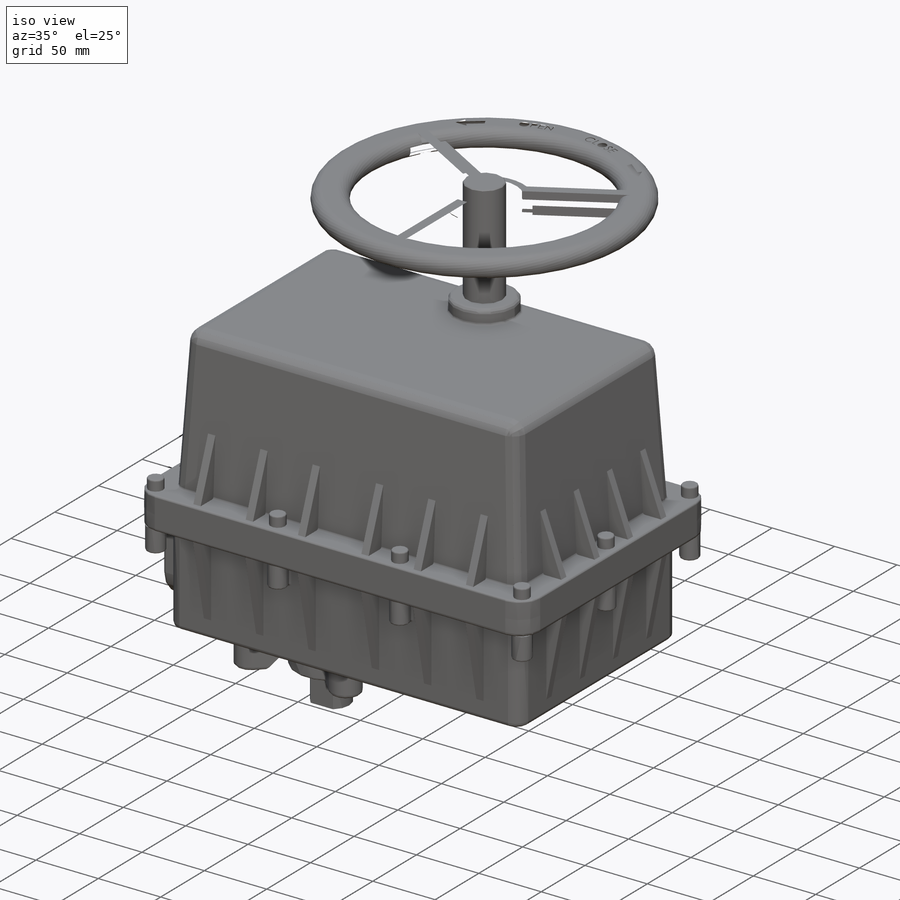
[diagram: iso view]
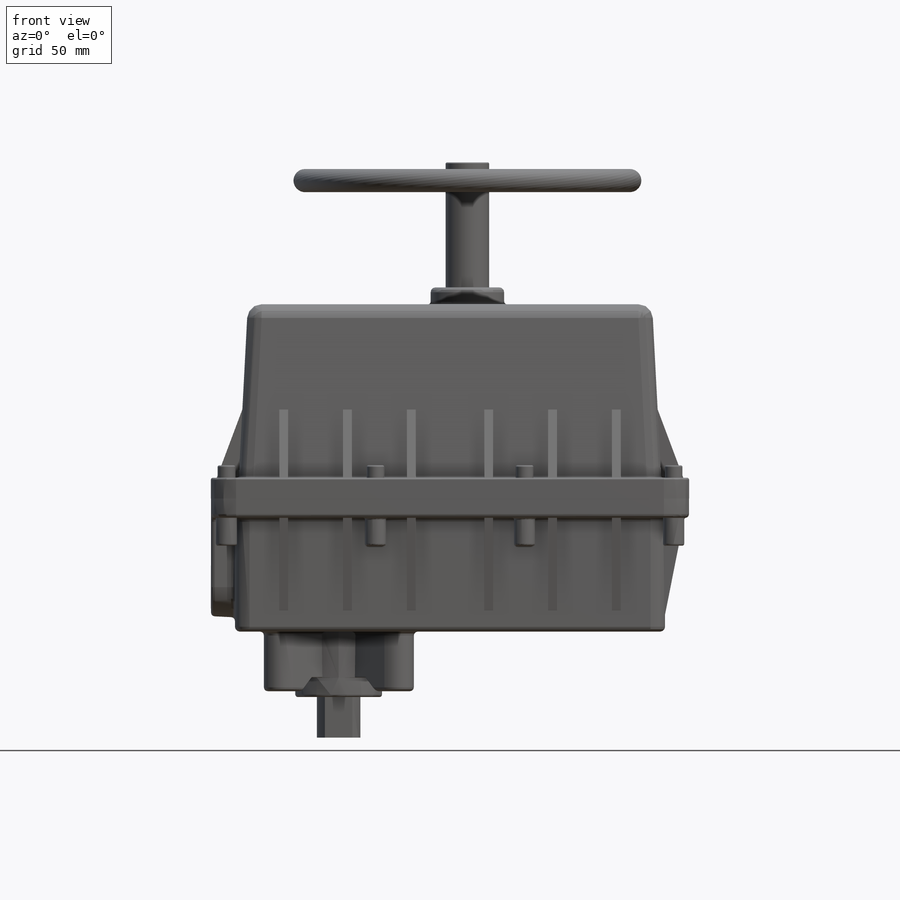
[diagram: front view]
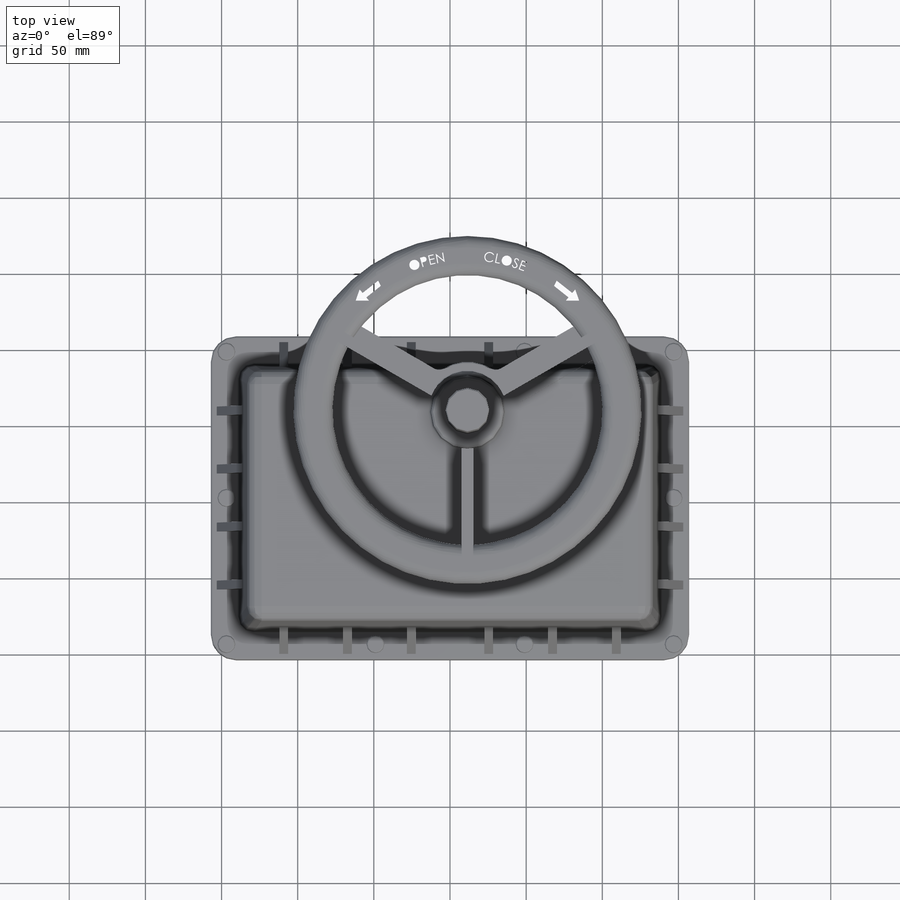
[diagram: top view]
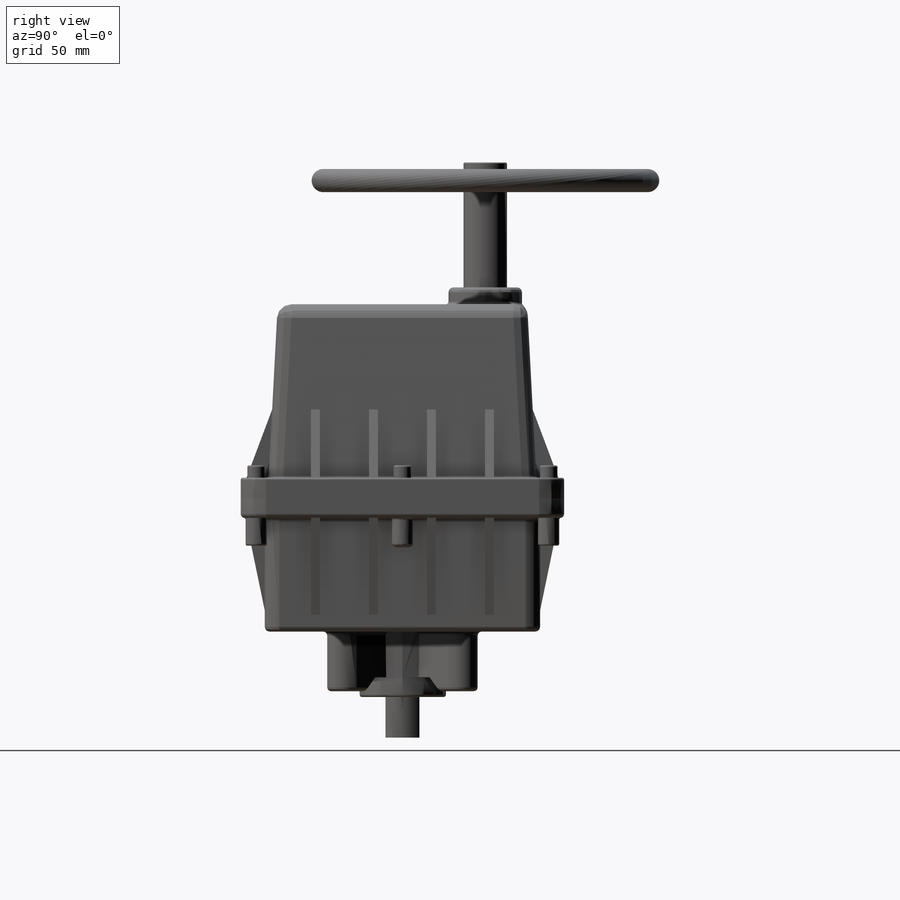
[diagram: right view]
SOLIDWORKS PART (.sldprt)
format: sldprt  version: not decoded by parser v0  size: 1,871,360 bytes
history: native  units: mm
features: sketch x30, extrude x21, fillet x15, mirror x15, plane x13, cut_extrude x6, chamfer x2, revolve x2, material x1 (+12 scaffold rows collapsed)
feature tree (117):
  scaffold x12  (default folders/planes/origin — collapsed)
  material  "Material <not specified>"
  sketch  "Sketch1"  dims[D3=16.51mm D1=313.944mm D2=212.344mm]
  extrude  "Extrude1"  Depth=13.6398mm
  sketch  "Sketch3"  dims[D1=0.0254mm]
  extrude  "Extrude2"  Depth=12.7mm
  sketch  "Sketch4"  dims[D2=18.288mm D3=18.288mm D1=18.288mm]
  extrude  "Extrude3"  Depth=113.919mm
  sketch  "Sketch7"  dims[c1.D3=48.26mm c1.D1=54.356mm c1.D2=106.172mm c2.D1=168.402mm c2.D2=~50.778565mm c3.D1=168.402mm c3.D2=54.356mm c4.D1=168.402mm]
  extrude  "Extrude5"  Depth=11.0744mm
  fillet  "Fillet1"  Radius=9.525mm
  sketch  "Sketch5"  dims[D1=15.748mm D2=15.748mm]
  extrude  "Extrude4"  Depth=74.7141mm
  fillet  "Fillet2"  Radius=9.525mm
  fillet  "Fillet3"  Radius=3.175mm
  sketch  "Sketch6"  dims[D1=12.7mm D2=114.3mm]
  fillet  "Fillet4"  Radius=1.5875mm
  fillet  "Fillet5"  Radius=3.175mm
  sketch  "Sketch8"  dims[c1.D3=22.7203mm c1.D4=22.7203mm c1.D1=83.82mm c1.D2=~55.690718mm c2.D2=45.0deg c2.D4=76.2mm]
  extrude  "Extrude6"  Depth=39.116mm
  fillet  "Fillet6"  Radius=2.54mm
  plane  "Plane1"  Offset=3.81mm
  sketch  "Sketch9"  dims[D1=57.15mm]
  extrude  "Extrude7"  [1 undecoded]
  plane  "Plane2"  Offset=12.7mm
  sketch  "Sketch10"  dims[D1=73.914mm]
  cut_extrude  "Cut-Extrude1"  [1 undecoded]
  chamfer  "Chamfer1"  Distance=9.652mm Angle=45deg
  fillet  "Fillet9"  Radius=0.635mm
  fillet  "Fillet10"  Radius=1.524mm
  sketch  "Sketch11"  dims[D1=88.9mm]
  cut_extrude  "Cut-Extrude2"  Depth=22.225mm
  chamfer  "Chamfer2"  Distance=0.79375mm Angle=45deg
  plane  "Plane3"  Offset=26.67mm
  sketch  "Sketch13"  dims[D1=28.575mm D2=22.1996mm]
  extrude  "Extrude8"  [1 undecoded]
  sketch  "Sketch14"  dims[D1=39.37mm D2=68.326mm D3=52.324mm]
  extrude  "Extrude9"  Depth=22.225mm
  sketch  "Sketch15"  dims[D1=28.321mm]
  fillet  "Fillet11"  Radius=2.54mm
  extrude  "Extrude10"  Depth=0.0254mm
  sketch  "Sketch17"  dims[D1=22.6314mm]
  cut_extrude  "Cut-Extrude4"  Depth=18.288mm
  sketch  "Sketch19"  dims[D3=11.5824mm D1=10.16mm D2=10.16mm D4=97.8662mm]
  extrude  "Extrude11"  Depth=8.128mm
  fillet  "Fillet12"  Radius=1.016mm
  sketch  "Sketch20"  dims[D1=13.97mm]
  extrude  "Extrude12"  Depth=18.288mm
  fillet  "Fillet13"  Radius=1.27mm
  plane  "Plane4"  Offset=19.05mm
  sketch  "Sketch21"  dims[D1=63.5mm D2=3.1496mm]
  extrude  "Extrude13"  Depth=5.842mm
  mirror  "Mirror1"
  mirror  "Mirror2"
  plane  "Plane5"  Offset=38.1mm
  sketch  "Sketch22"
  extrude  "Extrude14"  Depth=5.842mm
  mirror  "Mirror3"
  sketch  "Sketch23"  dims[D1=3.81mm D2=50.8mm D3=19.05mm]
  extrude  "Extrude15"  Depth=5.842mm
  mirror  "Mirror5"
  sketch  "Sketch24"  dims[D1=3.81mm]
  extrude  "Extrude16"  Depth=5.842mm
  mirror  "Mirror6"
  mirror  "Mirror7"
  plane  "Plane6"  Offset=25.4mm
  sketch  "Sketch25"  dims[D1=3.81mm]
  extrude  "Extrude17"  Depth=5.842mm
  mirror  "Mirror8"
  plane  "Plane7"  Offset=41.91mm
  sketch  "Sketch26"
  extrude  "Extrude18"  Depth=5.842mm
  mirror  "Mirror9"
  plane  "Plane8"  Offset=20.955mm
  mirror  "Mirror10"
  mirror  "Mirror11"
  sketch  "Sketch27"  dims[D1=63.5mm D2=3.1496mm]
  extrude  "Extrude19"  Depth=5.842mm
  mirror  "Mirror12"
  plane  "Plane9"  Offset=20.955mm
  mirror  "Mirror13"
  mirror  "Mirror14"
  mirror  "Mirror15"
  fillet  "Fillet14"  Radius=1.27mm
  fillet  "Fillet15"  Radius=1.27mm
  plane  "Plane10"  Offset=54.356mm
  plane  "Plane12"  Offset=12.7mm
  sketch  "Sketch28"  dims[c1.D1=15.24mm c1.D2=15.24mm c1.D5=~0.79375mm c1.D12=~0.79375mm c1.D15=~0.79375mm c1.D3=25.7302mm c1.D6=114.3mm c1.D7=342.9mm c2.D6=168.402mm c2.D8=114.3mm c2.D9=4.318mm c2.D10=50.8mm c2.D11=26.3398mm c3.D10=25.4mm c3.D13=6.7564mm c3.D14=31.5595mm c3.D6=168.402mm c3.D4=2.032mm]
  revolve  "Revolve2"  Angle=360deg
  sketch  "Sketch29"  dims[D1=196.596mm]
  cut_extrude  "Cut-Extrude8"  Depth=0.254mm
  sketch  "Sketch33"  dims[D1=25.4mm D2=7.62mm D3=6.7564mm]
  extrude  "Extrude22"  [1 undecoded]
  plane  "Plane13"
  sketch  "Sketch34"  dims[D1=25.4mm D2=7.62mm]
  extrude  "Extrude23"  [1 undecoded]
  plane  "Plane14"
  mirror  "Mirror16"
  sketch  "Sketch36"  dims[D1=28.6004mm]
  cut_extrude  "Cut-Extrude9"  [1 undecoded]
  sketch  "Sketch37"  dims[c1.D1=14.2875mm c1.D2=~0.603489mm c2.D2=45.0deg c2.D3=0.635mm]
  revolve  "Revolve3"  Angle=360deg
  sketch  "Sketch38"  dims[D1=198.628mm D2=3.81mm]
  cut_extrude  "Cut-Extrude10"  Depth=1.27mm
  fillet  "Fillet16"  Radius=0.254mm
  fillet  "Fillet17"  Radius=6.35mm
decode coverage: 68 of 91 modeling features carry decoded parameters
note: ~ marks probable driven/reference dimensions
note: 6 parameter values undecoded
summary: no parameter record found for 6 features
note: suppression state not decoded; provenance and decode notes live in map.json
